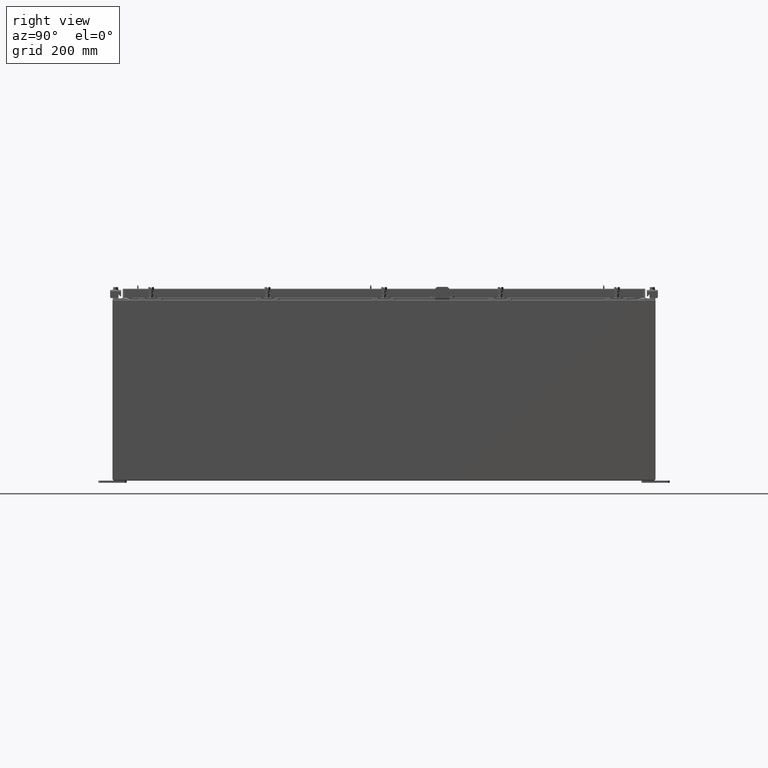
[diagram: clean part render]
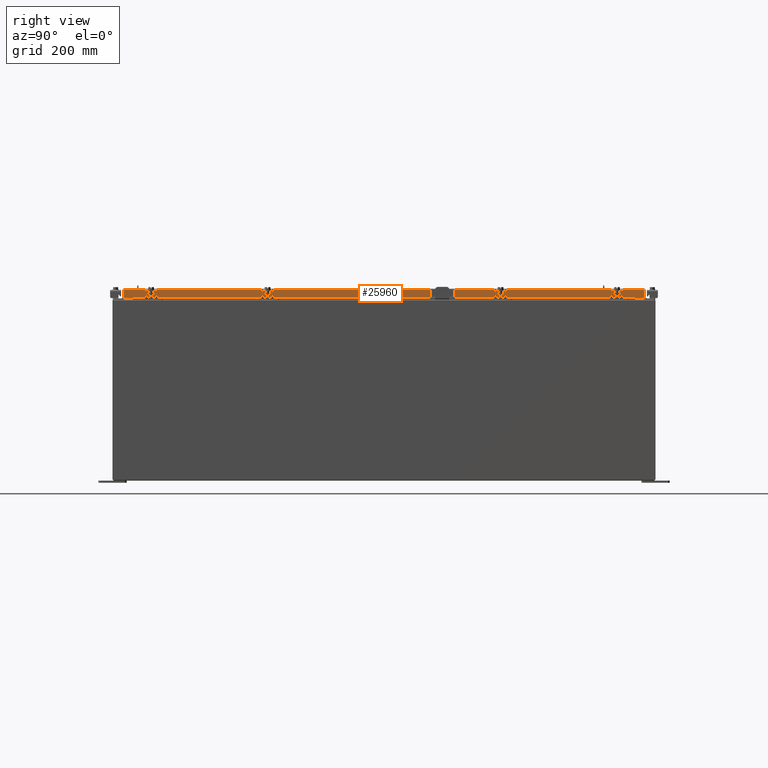
[diagram: same view with one face highlighted and labeled with its STEP entity id]
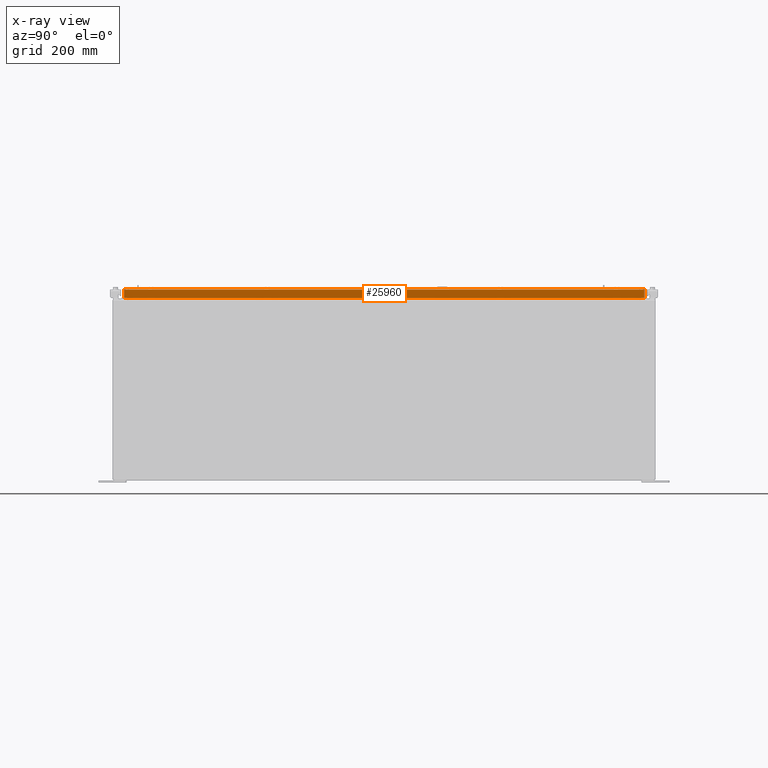
[diagram: x-ray of the same camera — body ghosted, the highlighted face saturated]
A machine part, right view. The second image highlights one B-rep face of the part: STEP entity #25960.
The next image is the same camera in x-ray: the body ghosted, the highlighted face saturated — about 0% of this face is hidden behind the body in this view.
In plain terms, the highlighted planar face has unit normal (1, 0, 0).
Its self-contained STEP definition (entity closure, byte-faithful):
#344 = AXIS2_PLACEMENT_3D ( 'NONE', #12128, #14260, #1660 ) ;
#611 = EDGE_CURVE ( 'NONE', #19592, #16323, #22105, .T. ) ;
#1660 = DIRECTION ( 'NONE',  ( 2.818880942772360100E-015, 0.0000000000000000000, -1.000000000000000000 ) ) ;
#1705 = VECTOR ( 'NONE', #14379, 39.37007874015748100 ) ;
#2346 = EDGE_CURVE ( 'NONE', #13193, #10098, #22725, .T. ) ;
#2509 = VECTOR ( 'NONE', #8540, 39.37007874015748100 ) ;
#2721 = CARTESIAN_POINT ( 'NONE',  ( 17.07799999999999200, 22.25515786437627200, -0.8500000000000020900 ) ) ;
#3661 = ORIENTED_EDGE ( 'NONE', *, *, #19758, .F. ) ;
#3978 = VECTOR ( 'NONE', #17361, 39.37007874015748100 ) ;
#4452 = CARTESIAN_POINT ( 'NONE',  ( 17.07799999999999200, -22.25515786437626200, -0.8500000000000020900 ) ) ;
#4681 = CARTESIAN_POINT ( 'NONE',  ( 17.07800000000000300, -23.09400000000000100, -0.8499999999999999800 ) ) ;
#5335 = VECTOR ( 'NONE', #11778, 39.37007874015748100 ) ;
#5898 = EDGE_CURVE ( 'NONE', #7588, #19592, #13687, .T. ) ;
#5902 = VECTOR ( 'NONE', #6957, 39.37007874015748100 ) ;
#6619 = LINE ( 'NONE', #20658, #1705 ) ;
#6957 = DIRECTION ( 'NONE',  ( 0.0000000000000000000, -1.000000000000000000, 0.0000000000000000000 ) ) ;
#7588 = VERTEX_POINT ( 'NONE', #22016 ) ;
#8540 = DIRECTION ( 'NONE',  ( -2.818880942772360100E-015, -6.982962677686265900E-015, 1.000000000000000000 ) ) ;
#9694 = CARTESIAN_POINT ( 'NONE',  ( 17.07800000000000300, -23.00515786437627200, -0.08770000000000245700 ) ) ;
#9746 = ORIENTED_EDGE ( 'NONE', *, *, #25815, .F. ) ;
#10047 = ORIENTED_EDGE ( 'NONE', *, *, #611, .T. ) ;
#10098 = VERTEX_POINT ( 'NONE', #4452 ) ;
#10829 = VERTEX_POINT ( 'NONE', #23317 ) ;
#10997 = ORIENTED_EDGE ( 'NONE', *, *, #20034, .F. ) ;
#11593 = LINE ( 'NONE', #13781, #5335 ) ;
#11778 = DIRECTION ( 'NONE',  ( -2.818880942772360100E-015, -6.982962677686265900E-015, 1.000000000000000000 ) ) ;
#11870 = CARTESIAN_POINT ( 'NONE',  ( 17.07799999999999200, 22.25515786437627200, -0.8500000000000020900 ) ) ;
#12128 = CARTESIAN_POINT ( 'NONE',  ( 17.07800000000000300, 0.0000000000000000000, 4.808052468849102900E-014 ) ) ;
#13193 = VERTEX_POINT ( 'NONE', #11870 ) ;
#13503 = ORIENTED_EDGE ( 'NONE', *, *, #2346, .F. ) ;
#13687 = LINE ( 'NONE', #21179, #2509 ) ;
#13781 = CARTESIAN_POINT ( 'NONE',  ( 17.07800000000000300, -23.00515786437627200, -0.07470000000000015500 ) ) ;
#13869 = FACE_OUTER_BOUND ( 'NONE', #26192, .T. ) ;
#14260 = DIRECTION ( 'NONE',  ( 1.000000000000000000, 0.0000000000000000000, 2.818880942772360100E-015 ) ) ;
#14379 = DIRECTION ( 'NONE',  ( 0.0000000000000000000, -1.000000000000000000, 0.0000000000000000000 ) ) ;
#15176 = DIRECTION ( 'NONE',  ( 0.0000000000000000000, -1.000000000000000000, 0.0000000000000000000 ) ) ;
#15851 = CARTESIAN_POINT ( 'NONE',  ( 17.07800000000000300, 23.00515786437626200, -0.08770000000000245700 ) ) ;
#16323 = VERTEX_POINT ( 'NONE', #9694 ) ;
#17270 = CARTESIAN_POINT ( 'NONE',  ( 17.07800000000000300, 4.149702466697117400E-018, -0.08770000000000245700 ) ) ;
#17361 = DIRECTION ( 'NONE',  ( 1.333810383284160400E-031, -1.000000000000000000, -4.731701729738051400E-017 ) ) ;
#18542 = LINE ( 'NONE', #4681, #22829 ) ;
#19592 = VERTEX_POINT ( 'NONE', #15851 ) ;
#19758 = EDGE_CURVE ( 'NONE', #7588, #13193, #6619, .T. ) ;
#20034 = EDGE_CURVE ( 'NONE', #10098, #10829, #18542, .T. ) ;
#20658 = CARTESIAN_POINT ( 'NONE',  ( 17.07800000000000300, -23.09400000000000100, -0.8499999999999999800 ) ) ;
#21179 = CARTESIAN_POINT ( 'NONE',  ( 17.07800000000000300, 23.00515786437626900, 2.076204475184840000E-013 ) ) ;
#22016 = CARTESIAN_POINT ( 'NONE',  ( 17.07800000000000300, 23.00515786437627200, -0.8499999999999999800 ) ) ;
#22105 = LINE ( 'NONE', #17270, #3978 ) ;
#22725 = LINE ( 'NONE', #2721, #5902 ) ;
#22829 = VECTOR ( 'NONE', #15176, 39.37007874015748100 ) ;
#23317 = CARTESIAN_POINT ( 'NONE',  ( 17.07800000000000300, -23.00515786437626900, -0.8499999999999999800 ) ) ;
#24749 = PLANE ( 'NONE',  #344 ) ;
#25815 = EDGE_CURVE ( 'NONE', #10829, #16323, #11593, .T. ) ;
#25960 = ADVANCED_FACE ( 'NONE', ( #13869 ), #24749, .T. ) ;
#26192 = EDGE_LOOP ( 'NONE', ( #9746, #10997, #13503, #3661, #26934, #10047 ) ) ;
#26934 = ORIENTED_EDGE ( 'NONE', *, *, #5898, .T. ) ;